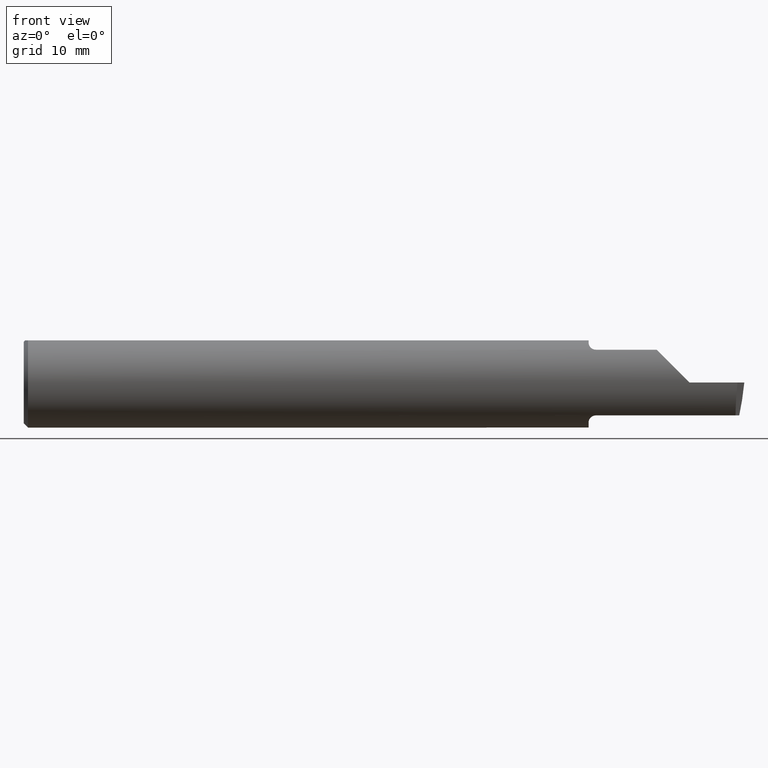
[diagram: clean part render]
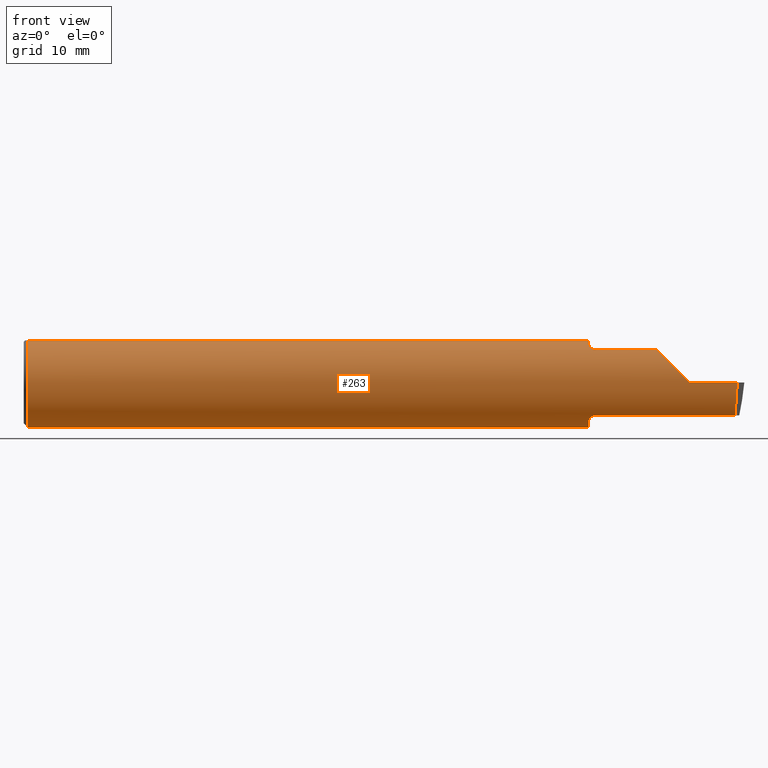
[diagram: same view with one face highlighted and labeled with its STEP entity id]
A machine part, front view. The second image highlights one B-rep face of the part: STEP entity #263.
In plain terms, the highlighted cylindrical surface (partial cylindrical patch) has radius 3.9649 mm, axis along (-1, -0, -0).
Its self-contained STEP definition (entity closure, byte-faithful):
#6 = FACE_OUTER_BOUND ( 'NONE', #625, .T. ) ;
#28 = CARTESIAN_POINT ( 'NONE',  ( 1.970099978564144871, -0.1027955252679587234, 0.1174954537061367044 ) ) ;
#31 = CARTESIAN_POINT ( 'NONE',  ( 2.195749659618757121, -0.1071233944954128187, 0.1135420113956950861 ) ) ;
#43 = DIRECTION ( 'NONE',  ( -1.000000000000000000, -0.000000000000000000, -0.000000000000000000 ) ) ;
#46 = EDGE_CURVE ( 'NONE', #518, #398, #351, .T. ) ;
#47 = AXIS2_PLACEMENT_3D ( 'NONE', #502, #818, #669 ) ;
#51 = B_SPLINE_CURVE_WITH_KNOTS ( 'NONE', 3,
 ( #607, #767, #687, #911, #60, #210 ),
 .UNSPECIFIED., .F., .F.,
 ( 4, 2, 4 ),
 ( 1.961995015679414803E-07, 0.0002839956466715517504, 0.0005677950938415356240 ),
 .UNSPECIFIED. ) ;
#55 = CARTESIAN_POINT ( 'NONE',  ( 1.958566166913449536, 0.000000000000000000, 0.000000000000000000 ) ) ;
#60 = CARTESIAN_POINT ( 'NONE',  ( 1.967657133561021121, -0.1005906597535194125, -0.1194109781423450395 ) ) ;
#61 = CARTESIAN_POINT ( 'NONE',  ( 1.959089987525373999, -0.08328211420178525948, -0.1321134063123294566 ) ) ;
#62 = DIRECTION ( 'NONE',  ( 1.000000000000000000, 0.000000000000000000, 0.000000000000000000 ) ) ;
#63 = VERTEX_POINT ( 'NONE', #654 ) ;
#82 = DIRECTION ( 'NONE',  ( -1.000000000000000000, -0.000000000000000000, -0.000000000000000000 ) ) ;
#90 = DIRECTION ( 'NONE',  ( -1.000000000000000000, -0.000000000000000000, -0.000000000000000000 ) ) ;
#91 = EDGE_CURVE ( 'NONE', #838, #574, #451, .T. ) ;
#94 = CIRCLE ( 'NONE', #671, 0.1560999999999999888 ) ;
#138 = CARTESIAN_POINT ( 'NONE',  ( 1.958566166913449536, 0.05497272050753906208, 0.1460999999999999521 ) ) ;
#151 = CARTESIAN_POINT ( 'NONE',  ( 2.474686727619818338, -0.1560999999999999888, -1.997916641087688092E-17 ) ) ;
#157 = EDGE_CURVE ( 'NONE', #398, #591, #51, .T. ) ;
#161 = ORIENTED_EDGE ( 'NONE', *, *, #758, .T. ) ;
#167 = VERTEX_POINT ( 'NONE', #319 ) ;
#168 = VECTOR ( 'NONE', #43, 39.37007874015748143 ) ;
#175 = CYLINDRICAL_SURFACE ( 'NONE', #531, 0.1560999999999999888 ) ;
#177 = VERTEX_POINT ( 'NONE', #138 ) ;
#181 = CIRCLE ( 'NONE', #47, 0.1560999999999999888 ) ;
#185 = CARTESIAN_POINT ( 'NONE',  ( 1.961383118266404324, -0.09116459585395113308, 0.1268023599067567564 ) ) ;
#190 = VERTEX_POINT ( 'NONE', #772 ) ;
#203 = EDGE_CURVE ( 'NONE', #734, #228, #362, .T. ) ;
#205 = CARTESIAN_POINT ( 'NONE',  ( 1.983566166913449225, -0.1071233944954127631, -0.1135420113956951416 ) ) ;
#208 = VECTOR ( 'NONE', #662, 39.37007874015748143 ) ;
#210 = CARTESIAN_POINT ( 'NONE',  ( 1.965689858637501786, -0.09809999999999993725, -0.1214232267731343295 ) ) ;
#215 = CARTESIAN_POINT ( 'NONE',  ( 1.965689858637501786, -0.09809999999999993725, -0.1214232267731343295 ) ) ;
#219 = AXIS2_PLACEMENT_3D ( 'NONE', #260, #814, #743 ) ;
#228 = VERTEX_POINT ( 'NONE', #865 ) ;
#238 = ORIENTED_EDGE ( 'NONE', *, *, #371, .T. ) ;
#248 = B_SPLINE_CURVE_WITH_KNOTS ( 'NONE', 3,
 ( #215, #462, #991, #61, #603, #689 ),
 .UNSPECIFIED., .F., .F.,
 ( 4, 2, 4 ),
 ( 0.0005677950938415356240, 0.0009390082881238557937, 0.001310221482406176072 ),
 .UNSPECIFIED. ) ;
#251 = CARTESIAN_POINT ( 'NONE',  ( 1.958566166913449536, -0.05497272050753906208, 0.1460999999999999521 ) ) ;
#254 = ORIENTED_EDGE ( 'NONE', *, *, #906, .T. ) ;
#260 = CARTESIAN_POINT ( 'NONE',  ( 0.01499999999999970281, 0.000000000000000000, 0.000000000000000000 ) ) ;
#263 = ADVANCED_FACE ( 'NONE', ( #6 ), #175, .T. ) ;
#267 = EDGE_CURVE ( 'NONE', #63, #177, #779, .T. ) ;
#291 = VERTEX_POINT ( 'NONE', #714 ) ;
#308 = CARTESIAN_POINT ( 'NONE',  ( 2.470488995690050871, -0.1560999999999999333, -0.04359511292662830023 ) ) ;
#312 = CARTESIAN_POINT ( 'NONE',  ( 2.500000000000000000, -0.05497272050753906208, 0.1460999999999999521 ) ) ;
#319 = CARTESIAN_POINT ( 'NONE',  ( 1.965689858637555076, -0.09810000000015267618, 0.1214232267730240983 ) ) ;
#321 = ORIENTED_EDGE ( 'NONE', *, *, #91, .T. ) ;
#325 = CARTESIAN_POINT ( 'NONE',  ( 2.500000000000000000, 0.000000000000000000, 0.000000000000000000 ) ) ;
#330 = CARTESIAN_POINT ( 'NONE',  ( 2.308999999999999719, -0.1560999999999999888, -3.995833282175376183E-17 ) ) ;
#343 = CARTESIAN_POINT ( 'NONE',  ( 1.976132602705040098, -0.1060830713452040885, 0.1145359490758022930 ) ) ;
#348 = EDGE_CURVE ( 'NONE', #574, #190, #181, .T. ) ;
#349 = CARTESIAN_POINT ( 'NONE',  ( 1.958566166913449536, -0.07491136595310907142, 0.1369507110278707640 ) ) ;
#351 = LINE ( 'NONE', #744, #168 ) ;
#353 = ORIENTED_EDGE ( 'NONE', *, *, #203, .T. ) ;
#362 = LINE ( 'NONE', #622, #985 ) ;
#368 = CARTESIAN_POINT ( 'NONE',  ( 1.983566166913449225, -0.1071233944954127631, 0.1135420113956951416 ) ) ;
#369 = ORIENTED_EDGE ( 'NONE', *, *, #267, .T. ) ;
#371 = EDGE_CURVE ( 'NONE', #190, #63, #657, .T. ) ;
#398 = VERTEX_POINT ( 'NONE', #205 ) ;
#407 = VECTOR ( 'NONE', #947, 39.37007874015748143 ) ;
#410 = EDGE_CURVE ( 'NONE', #854, #177, #706, .T. ) ;
#416 = DIRECTION ( 'NONE',  ( 0.000000000000000000, 0.000000000000000000, 1.000000000000000000 ) ) ;
#417 = CARTESIAN_POINT ( 'NONE',  ( 1.958566166913449536, -0.07491136595310907142, -0.1369507110278707640 ) ) ;
#419 = ORIENTED_EDGE ( 'NONE', *, *, #1005, .F. ) ;
#422 = ORIENTED_EDGE ( 'NONE', *, *, #638, .F. ) ;
#449 = EDGE_CURVE ( 'NONE', #291, #167, #812, .T. ) ;
#451 = LINE ( 'NONE', #312, #720 ) ;
#462 = CARTESIAN_POINT ( 'NONE',  ( 1.963116638655315382, -0.09484218617339087998, -0.1240552729218293154 ) ) ;
#486 = ORIENTED_EDGE ( 'NONE', *, *, #449, .F. ) ;
#502 = CARTESIAN_POINT ( 'NONE',  ( 0.01499999999999970281, 0.000000000000000000, 0.000000000000000000 ) ) ;
#504 = ORIENTED_EDGE ( 'NONE', *, *, #348, .T. ) ;
#510 = ORIENTED_EDGE ( 'NONE', *, *, #553, .F. ) ;
#516 = CARTESIAN_POINT ( 'NONE',  ( 1.958566166913449536, 0.000000000000000000, 0.000000000000000000 ) ) ;
#518 = VERTEX_POINT ( 'NONE', #994 ) ;
#531 = AXIS2_PLACEMENT_3D ( 'NONE', #325, #90, #416 ) ;
#553 = EDGE_CURVE ( 'NONE', #591, #854, #248, .T. ) ;
#562 = CARTESIAN_POINT ( 'NONE',  ( 2.195457988604305744, -0.1071233944954127631, 0.1135420113956950999 ) ) ;
#569 = ORIENTED_EDGE ( 'NONE', *, *, #157, .F. ) ;
#570 = DIRECTION ( 'NONE',  ( 1.000000000000000000, 0.000000000000000000, 0.000000000000000000 ) ) ;
#574 = VERTEX_POINT ( 'NONE', #919 ) ;
#576 = CARTESIAN_POINT ( 'NONE',  ( 1.958566166913449091, -0.07917385093736307999, 0.1346191526874390143 ) ) ;
#583 = CARTESIAN_POINT ( 'NONE',  ( 1.963112673170739120, -0.09483716568914710154, 0.1240593290609891125 ) ) ;
#591 = VERTEX_POINT ( 'NONE', #898 ) ;
#600 = CARTESIAN_POINT ( 'NONE',  ( 2.468152212319468131, -0.1388330473378972807, -0.08362492952438660421 ) ) ;
#603 = CARTESIAN_POINT ( 'NONE',  ( 1.958566166913449536, -0.07917593072935799614, -0.1346180150514380003 ) ) ;
#607 = CARTESIAN_POINT ( 'NONE',  ( 1.983566166913449225, -0.1071233944954127631, -0.1135420113956951416 ) ) ;
#617 = DIRECTION ( 'NONE',  ( -1.000000000000000000, -0.000000000000000000, -0.000000000000000000 ) ) ;
#622 = CARTESIAN_POINT ( 'NONE',  ( 2.500000000000000000, -0.1560999999999999888, -3.995833282175376183E-17 ) ) ;
#625 = EDGE_LOOP ( 'NONE', ( #1006, #161, #353, #254, #422, #419, #486, #637, #321, #504, #238, #369, #810, #510, #569 ) ) ;
#636 = CARTESIAN_POINT ( 'NONE',  ( 2.265404887073371398, -0.1560999999999999888, 0.04359511292662814758 ) ) ;
#637 = ORIENTED_EDGE ( 'NONE', *, *, #701, .F. ) ;
#638 = EDGE_CURVE ( 'NONE', #778, #672, #987, .T. ) ;
#648 = CARTESIAN_POINT ( 'NONE',  ( 1.979775537739325797, -0.1071233944954145673, 0.1135420113956934485 ) ) ;
#654 = CARTESIAN_POINT ( 'NONE',  ( 0.01499999999999970281, 0.05497272050753906208, 0.1460999999999999521 ) ) ;
#657 = CIRCLE ( 'NONE', #219, 0.1560999999999999888 ) ;
#662 = DIRECTION ( 'NONE',  ( 1.000000000000000000, 0.000000000000000000, 0.000000000000000000 ) ) ;
#664 = CARTESIAN_POINT ( 'NONE',  ( 1.959089542370245907, -0.08327726429903253846, 0.1321163096139383042 ) ) ;
#669 = DIRECTION ( 'NONE',  ( 0.000000000000000000, 0.000000000000000000, -1.000000000000000000 ) ) ;
#671 = AXIS2_PLACEMENT_3D ( 'NONE', #55, #62, #768 ) ;
#672 = VERTEX_POINT ( 'NONE', #822 ) ;
#685 = CARTESIAN_POINT ( 'NONE',  ( 2.468058591229436605, -0.1071233944954127215, -0.1135420113956950999 ) ) ;
#687 = CARTESIAN_POINT ( 'NONE',  ( 1.976154611570191566, -0.1060937515841783585, -0.1145262414630892484 ) ) ;
#689 = CARTESIAN_POINT ( 'NONE',  ( 1.958566166913449536, -0.07491136595310907142, -0.1369507110278707640 ) ) ;
#699 = CARTESIAN_POINT ( 'NONE',  ( 2.474686727619818338, -0.1560999999999999888, -1.997916641087688092E-17 ) ) ;
#701 = EDGE_CURVE ( 'NONE', #838, #291, #94, .T. ) ;
#706 = CIRCLE ( 'NONE', #824, 0.1560999999999999888 ) ;
#714 = CARTESIAN_POINT ( 'NONE',  ( 1.958566166913449536, -0.07491136595310907142, 0.1369507110278707640 ) ) ;
#720 = VECTOR ( 'NONE', #617, 39.37007874015748143 ) ;
#730 = CARTESIAN_POINT ( 'NONE',  ( 1.967659542970777053, -0.1005937101760986940, 0.1194085136512956641 ) ) ;
#734 = VERTEX_POINT ( 'NONE', #699 ) ;
#743 = DIRECTION ( 'NONE',  ( 0.000000000000000000, 0.000000000000000000, -1.000000000000000000 ) ) ;
#744 = CARTESIAN_POINT ( 'NONE',  ( 2.195749659618757121, -0.1071233944954128187, -0.1135420113956950861 ) ) ;
#757 =( BOUNDED_CURVE ( )  B_SPLINE_CURVE ( 3, ( #685, #600, #308, #151 ),
 .UNSPECIFIED., .F., .T. ) 
 B_SPLINE_CURVE_WITH_KNOTS ( ( 4, 4 ),
 ( 0.01647296458214366974, 0.8309504825764487679 ),
 .UNSPECIFIED. ) 
 CURVE ( )  GEOMETRIC_REPRESENTATION_ITEM ( )  RATIONAL_B_SPLINE_CURVE ( ( 1.000000000000000000, 0.9454786543792904618, 0.9454786543792904618, 1.000000000000000000 ) ) 
 REPRESENTATION_ITEM ( '' )  );
#758 = EDGE_CURVE ( 'NONE', #518, #734, #757, .T. ) ;
#767 = CARTESIAN_POINT ( 'NONE',  ( 1.979769809386570989, -0.1071233944954128187, -0.1135420113956950861 ) ) ;
#768 = DIRECTION ( 'NONE',  ( 0.000000000000000000, 0.000000000000000000, -1.000000000000000000 ) ) ;
#772 = CARTESIAN_POINT ( 'NONE',  ( 0.01499999999999970281, 0.000000000000000000, -0.1560999999999999888 ) ) ;
#778 = VERTEX_POINT ( 'NONE', #842 ) ;
#779 = LINE ( 'NONE', #938, #407 ) ;
#810 = ORIENTED_EDGE ( 'NONE', *, *, #410, .F. ) ;
#812 = B_SPLINE_CURVE_WITH_KNOTS ( 'NONE', 3,
 ( #349, #576, #664, #185, #583, #973 ),
 .UNSPECIFIED., .F., .F.,
 ( 4, 2, 4 ),
 ( 0.0001052866876005391367, 0.0004736434126142224032, 0.0008420001376279056832 ),
 .UNSPECIFIED. ) ;
#814 = DIRECTION ( 'NONE',  ( 1.000000000000000000, -0.000000000000000000, -0.000000000000000000 ) ) ;
#818 = DIRECTION ( 'NONE',  ( 1.000000000000000000, -0.000000000000000000, -0.000000000000000000 ) ) ;
#822 = CARTESIAN_POINT ( 'NONE',  ( 2.195457988604305744, -0.1071233944954127631, 0.1135420113956950999 ) ) ;
#824 = AXIS2_PLACEMENT_3D ( 'NONE', #516, #570, #875 ) ;
#838 = VERTEX_POINT ( 'NONE', #251 ) ;
#842 = CARTESIAN_POINT ( 'NONE',  ( 1.983566166913449225, -0.1071233944954127631, 0.1135420113956951416 ) ) ;
#853 = CARTESIAN_POINT ( 'NONE',  ( 2.225375070475613892, -0.1388330473378973640, 0.08362492952438650706 ) ) ;
#854 = VERTEX_POINT ( 'NONE', #417 ) ;
#865 = CARTESIAN_POINT ( 'NONE',  ( 2.308999999999999719, -0.1560999999999999888, -3.995833282175376183E-17 ) ) ;
#875 = DIRECTION ( 'NONE',  ( 0.000000000000000000, 0.000000000000000000, -1.000000000000000000 ) ) ;
#898 = CARTESIAN_POINT ( 'NONE',  ( 1.965689858637501786, -0.09809999999999993725, -0.1214232267731343295 ) ) ;
#906 = EDGE_CURVE ( 'NONE', #228, #672, #970, .T. ) ;
#911 = CARTESIAN_POINT ( 'NONE',  ( 1.970091220512933505, -0.1027920633402272105, -0.1174986630695254997 ) ) ;
#919 = CARTESIAN_POINT ( 'NONE',  ( 0.01499999999999971148, -0.05497272050753906208, 0.1460999999999999521 ) ) ;
#938 = CARTESIAN_POINT ( 'NONE',  ( 2.500000000000000000, 0.05497272050753906208, 0.1460999999999999521 ) ) ;
#947 = DIRECTION ( 'NONE',  ( 1.000000000000000000, 0.000000000000000000, 0.000000000000000000 ) ) ;
#968 = CARTESIAN_POINT ( 'NONE',  ( 1.965689858637555076, -0.09810000000015267618, 0.1214232267730240983 ) ) ;
#970 =( BOUNDED_CURVE ( )  B_SPLINE_CURVE ( 3, ( #330, #636, #853, #562 ),
 .UNSPECIFIED., .F., .T. ) 
 B_SPLINE_CURVE_WITH_KNOTS ( ( 4, 4 ),
 ( 4.712388980384689674, 5.526866498378995018 ),
 .UNSPECIFIED. ) 
 CURVE ( )  GEOMETRIC_REPRESENTATION_ITEM ( )  RATIONAL_B_SPLINE_CURVE ( ( 1.000000000000000000, 0.9454786543792904618, 0.9454786543792904618, 1.000000000000000000 ) ) 
 REPRESENTATION_ITEM ( '' )  );
#973 = CARTESIAN_POINT ( 'NONE',  ( 1.965689858637555076, -0.09810000000015267618, 0.1214232267730240983 ) ) ;
#985 = VECTOR ( 'NONE', #82, 39.37007874015748143 ) ;
#987 = LINE ( 'NONE', #31, #208 ) ;
#988 = B_SPLINE_CURVE_WITH_KNOTS ( 'NONE', 3,
 ( #968, #730, #28, #343, #648, #368 ),
 .UNSPECIFIED., .F., .F.,
 ( 4, 2, 4 ),
 ( 0.0008420001376279056832, 0.001123526818422255222, 0.001405053499216604761 ),
 .UNSPECIFIED. ) ;
#991 = CARTESIAN_POINT ( 'NONE',  ( 1.961387458576439702, -0.09117619566713480728, -0.1267941797443171703 ) ) ;
#994 = CARTESIAN_POINT ( 'NONE',  ( 2.468058591229436605, -0.1071233944954127215, -0.1135420113956950999 ) ) ;
#1005 = EDGE_CURVE ( 'NONE', #167, #778, #988, .T. ) ;
#1006 = ORIENTED_EDGE ( 'NONE', *, *, #46, .F. ) ;